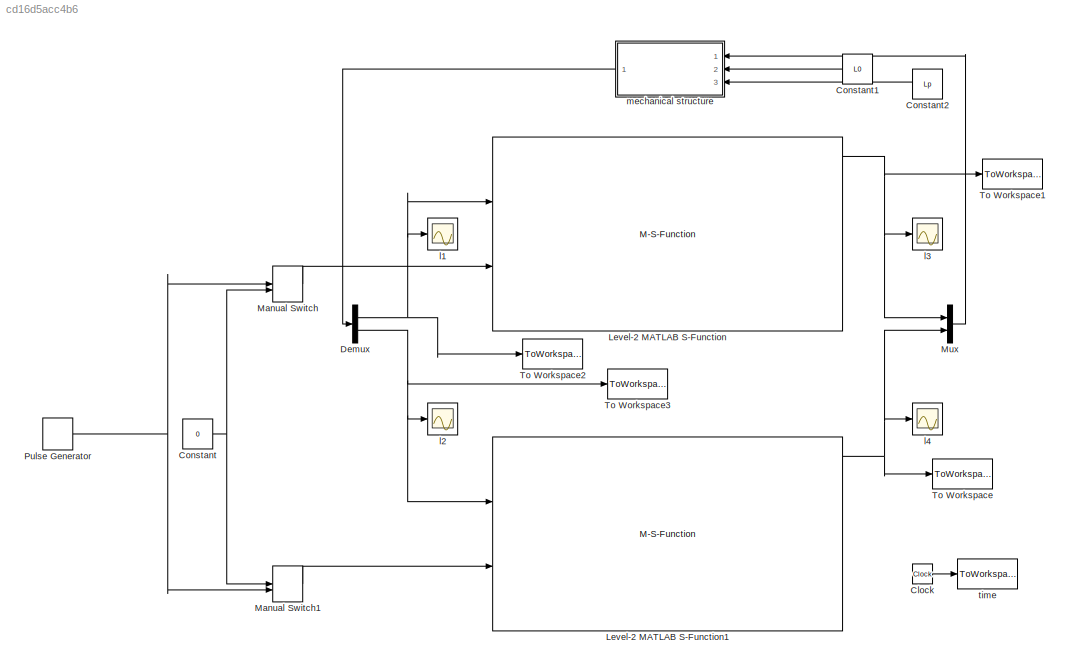
MODEL slx_cd16d5acc4b6
KIND model
CONFIG AbsTol = auto
CONFIG EnableMultiTasking = off
CONFIG FixedStep = auto
CONFIG MaxStep = 0.001
CONFIG MinStep = auto
CONFIG RelTol = 1e-3
CONFIG SampleTimeConstraint = Unconstrained
CONFIG Solver = ode15s
CONFIG SolverName = ode15s
CONFIG StartTime = 0.0
CONFIG StopTime = 50
BLOCK [Clock] Clock
BLOCK [Constant] Constant
  Value = 0
BLOCK [Constant] Constant1
  Value = L0
BLOCK [Constant] Constant2
  Value = Lp
BLOCK [Demux] Demux
  DisplayOption = bar
  Outputs = 2
  Ports = [1, 2]
BLOCK [M-S-Function] Level-2 MATLAB S-Function
  FunctionName = sDE_dispIn
  Parameters = params, initConds
  Ports = [2, 9]
BLOCK [M-S-Function] Level-2 MATLAB S-Function1
  FunctionName = sDE_dispIn
  Parameters = params, initConds
  Ports = [2, 9]
BLOCK [ManualSwitch] Manual Switch
BLOCK [ManualSwitch] Manual Switch1
  CurrentSetting = 0
BLOCK [Mux] Mux
  DisplayOption = bar
  Inputs = 2
  Ports = [2, 1]
BLOCK [DiscretePulseGenerator] Pulse Generator
  Amplitude = 3000
  Period = 10
  PhaseDelay = 2.5
  Ports = [0, 1]
  PulseType = Time based
  PulseWidth = 50
BLOCK [ToWorkspace] To Workspace
  FixptAsFi = on
  MaxDataPoints = inf
  Ports = [1]
  SampleTime = -1
  Save2DSignal = 3-D array (concatenate along third dimension)
  VariableName = F2
BLOCK [ToWorkspace] To Workspace1
  FixptAsFi = on
  MaxDataPoints = inf
  Ports = [1]
  SampleTime = -1
  Save2DSignal = 3-D array (concatenate along third dimension)
  VariableName = F1
BLOCK [ToWorkspace] To Workspace2
  FixptAsFi = on
  MaxDataPoints = inf
  Ports = [1]
  SampleTime = -1
  Save2DSignal = 3-D array (concatenate along third dimension)
  VariableName = l1
BLOCK [ToWorkspace] To Workspace3
  FixptAsFi = on
  MaxDataPoints = inf
  Ports = [1]
  SampleTime = -1
  Save2DSignal = 3-D array (concatenate along third dimension)
  VariableName = l2
BLOCK [Scope] l1
  Floating = off
  NumInputPorts = 1
  Ports = [1]
  ScopeSpecificationString = Simulink.scopes.TimeScopeBlockCfg('CurrentConfiguration', extmgr.ConfigurationSet(extmgr.Configuration('Core','General UI',true),extmgr.Configuration('Core','Source UI',true),extmgr.Configuration('Sources','WiredSimulink',true),extmgr.Configuration('Visuals','Time Domain',true,'SerializedDisplays',{struct('MinYLimReal','0.25909','MaxYLimReal','0.27164','YLabelReal','','MinYLimMag','0.25909','MaxYL...<+1379ch>
BLOCK [Scope] l2
  Floating = off
  NumInputPorts = 1
  Ports = [1]
  ScopeSpecificationString = Simulink.scopes.TimeScopeBlockCfg('CurrentConfiguration', extmgr.ConfigurationSet(extmgr.Configuration('Core','General UI',true),extmgr.Configuration('Core','Source UI',true),extmgr.Configuration('Sources','WiredSimulink',true,'DataLoggingVariableName','ScopeData1'),extmgr.Configuration('Visuals','Time Domain',true,'SerializedDisplays',{struct('MinYLimReal','0.25718','MaxYLimReal','0.2909','YLabel...<+1414ch>
BLOCK [Scope] l3
  Floating = off
  NumInputPorts = 1
  Ports = [1]
  ScopeSpecificationString = Simulink.scopes.TimeScopeBlockCfg('CurrentConfiguration', extmgr.ConfigurationSet(extmgr.Configuration('Core','General UI',true),extmgr.Configuration('Core','Source UI',true),extmgr.Configuration('Sources','WiredSimulink',true,'DataLoggingVariableName','ScopeData2'),extmgr.Configuration('Visuals','Time Domain',true),extmgr.Configuration('Tools','Plot Navigation',true),extmgr.Configuration('Tools',...<+40ch>
BLOCK [Scope] l4
  Floating = off
  NumInputPorts = 1
  Ports = [1]
  ScopeSpecificationString = Simulink.scopes.TimeScopeBlockCfg('CurrentConfiguration', extmgr.ConfigurationSet(extmgr.Configuration('Core','General UI',true),extmgr.Configuration('Core','Source UI',true),extmgr.Configuration('Sources','WiredSimulink',true,'DataLoggingVariableName','ScopeData3'),extmgr.Configuration('Visuals','Time Domain',true,'SerializedDisplays',{struct('MinYLimReal','-9.63725','MaxYLimReal','86.73522','YLa...<+1419ch>
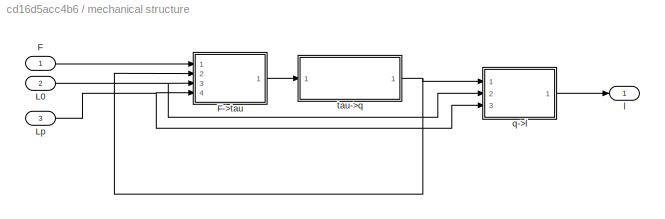
BLOCK [SubSystem] mechanical structure
  Ports = [3, 1]
  RequestExecContextInheritance = off
BLOCK [Inport] mechanical structure/F
  IconDisplay = Port number
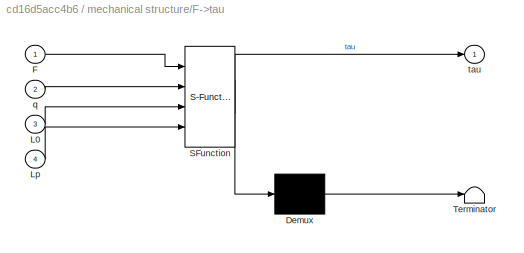
BLOCK [SubSystem] mechanical structure/F->tau
  ErrorFcn = Stateflow.Translate.translate
  PermitHierarchicalResolution = ExplicitOnly
  Ports = [4, 1]
  RequestExecContextInheritance = off
  SFBlockType = MATLAB Function
  TreatAsAtomicUnit = on
BLOCK [Demux] mechanical structure/F->tau/ Demux 
  Outputs = 1
  Ports = [1, 1]
BLOCK [S-Function] mechanical structure/F->tau/ SFunction 
  EnableBusSupport = on
  FunctionName = sf_sfun
  PortCounts = [4 2]
  Ports = [4, 2]
  SFcnIsStateOwnerBlock = off
  SFunctionDeploymentMode = off
  Tag = Stateflow S-Function Controller 2
BLOCK [Terminator] mechanical structure/F->tau/ Terminator 
BLOCK [Inport] mechanical structure/F->tau/F
  IconDisplay = Port number
BLOCK [Inport] mechanical structure/F->tau/L0
  IconDisplay = Port number
  Port = 3
BLOCK [Inport] mechanical structure/F->tau/Lp
  IconDisplay = Port number
  Port = 4
BLOCK [Inport] mechanical structure/F->tau/q
  IconDisplay = Port number
  Port = 2
BLOCK [Outport] mechanical structure/F->tau/tau
  IconDisplay = Port number
BLOCK [Inport] mechanical structure/L0
  IconDisplay = Port number
  Port = 2
BLOCK [Inport] mechanical structure/Lp
  IconDisplay = Port number
  Port = 3
BLOCK [Outport] mechanical structure/l
  IconDisplay = Port number
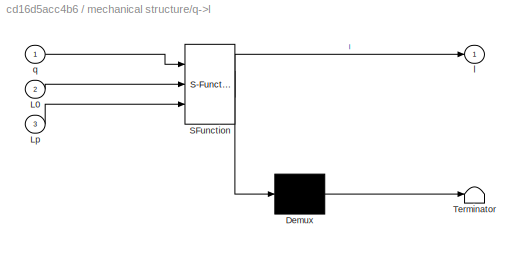
BLOCK [SubSystem] mechanical structure/q->l
  ErrorFcn = Stateflow.Translate.translate
  PermitHierarchicalResolution = ExplicitOnly
  Ports = [3, 1]
  RequestExecContextInheritance = off
  SFBlockType = MATLAB Function
  TreatAsAtomicUnit = on
BLOCK [Demux] mechanical structure/q->l/ Demux 
  Outputs = 1
  Ports = [1, 1]
BLOCK [S-Function] mechanical structure/q->l/ SFunction 
  EnableBusSupport = on
  FunctionName = sf_sfun
  PortCounts = [3 2]
  Ports = [3, 2]
  SFcnIsStateOwnerBlock = off
  SFunctionDeploymentMode = off
  Tag = Stateflow S-Function Controller 1
BLOCK [Terminator] mechanical structure/q->l/ Terminator 
BLOCK [Inport] mechanical structure/q->l/L0
  IconDisplay = Port number
  Port = 2
BLOCK [Inport] mechanical structure/q->l/Lp
  IconDisplay = Port number
  Port = 3
BLOCK [Outport] mechanical structure/q->l/l
  IconDisplay = Port number
BLOCK [Inport] mechanical structure/q->l/q
  IconDisplay = Port number
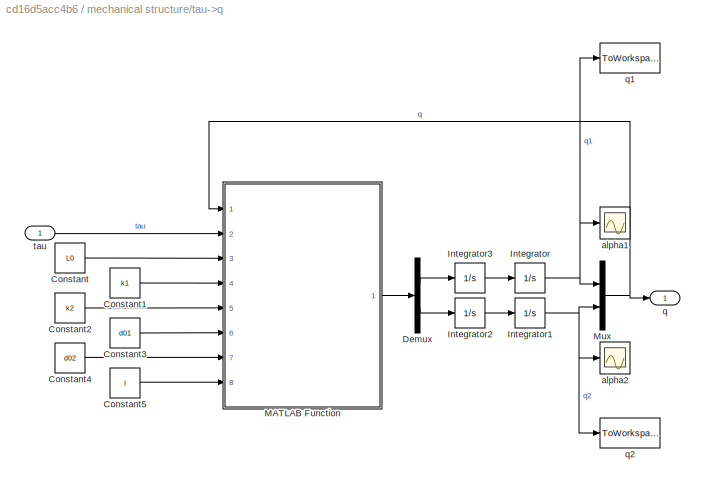
BLOCK [SubSystem] mechanical structure/tau->q
  Ports = [1, 1]
  RequestExecContextInheritance = off
BLOCK [Constant] mechanical structure/tau->q/Constant
  Value = L0
BLOCK [Constant] mechanical structure/tau->q/Constant1
  Value = k1
BLOCK [Constant] mechanical structure/tau->q/Constant2
  Value = k2
BLOCK [Constant] mechanical structure/tau->q/Constant3
  Value = d01
BLOCK [Constant] mechanical structure/tau->q/Constant4
  Value = d02
BLOCK [Constant] mechanical structure/tau->q/Constant5
  Value = I
BLOCK [Demux] mechanical structure/tau->q/Demux
  DisplayOption = bar
  Outputs = 2
  Ports = [1, 2]
BLOCK [Integrator] mechanical structure/tau->q/Integrator
  InitialCondition = q1_0
  Ports = [1, 1]
BLOCK [Integrator] mechanical structure/tau->q/Integrator1
  InitialCondition = q2_0
  Ports = [1, 1]
BLOCK [Integrator] mechanical structure/tau->q/Integrator2
  InitialCondition = q2_dot_0
  Ports = [1, 1]
BLOCK [Integrator] mechanical structure/tau->q/Integrator3
  InitialCondition = q1_dot_0
  Ports = [1, 1]
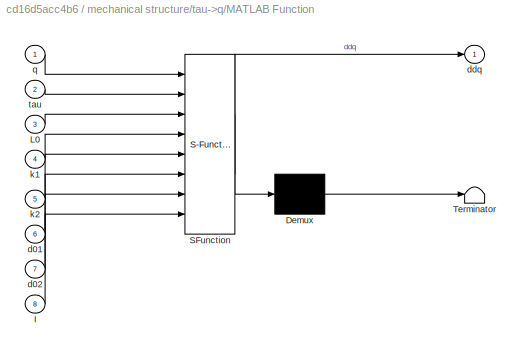
BLOCK [SubSystem] mechanical structure/tau->q/MATLAB Function
  ErrorFcn = Stateflow.Translate.translate
  PermitHierarchicalResolution = ExplicitOnly
  Ports = [8, 1]
  RequestExecContextInheritance = off
  SFBlockType = MATLAB Function
  TreatAsAtomicUnit = on
BLOCK [Demux] mechanical structure/tau->q/MATLAB Function/ Demux 
  Outputs = 1
  Ports = [1, 1]
BLOCK [S-Function] mechanical structure/tau->q/MATLAB Function/ SFunction 
  EnableBusSupport = on
  FunctionName = sf_sfun
  PortCounts = [8 2]
  Ports = [8, 2]
  SFcnIsStateOwnerBlock = off
  SFunctionDeploymentMode = off
  Tag = Stateflow S-Function Controller 3
BLOCK [Terminator] mechanical structure/tau->q/MATLAB Function/ Terminator 
BLOCK [Inport] mechanical structure/tau->q/MATLAB Function/I
  IconDisplay = Port number
  Port = 8
BLOCK [Inport] mechanical structure/tau->q/MATLAB Function/L0
  IconDisplay = Port number
  Port = 3
BLOCK [Inport] mechanical structure/tau->q/MATLAB Function/d01
  IconDisplay = Port number
  Port = 6
BLOCK [Inport] mechanical structure/tau->q/MATLAB Function/d02
  IconDisplay = Port number
  Port = 7
BLOCK [Outport] mechanical structure/tau->q/MATLAB Function/ddq
  IconDisplay = Port number
BLOCK [Inport] mechanical structure/tau->q/MATLAB Function/k1
  IconDisplay = Port number
  Port = 4
BLOCK [Inport] mechanical structure/tau->q/MATLAB Function/k2
  IconDisplay = Port number
  Port = 5
BLOCK [Inport] mechanical structure/tau->q/MATLAB Function/q
  IconDisplay = Port number
BLOCK [Inport] mechanical structure/tau->q/MATLAB Function/tau
  IconDisplay = Port number
  Port = 2
BLOCK [Mux] mechanical structure/tau->q/Mux
  DisplayOption = bar
  Inputs = 2
  Ports = [2, 1]
BLOCK [Scope] mechanical structure/tau->q/alpha1
  Floating = off
  NumInputPorts = 1
  Ports = [1]
  ScopeSpecificationString = Simulink.scopes.TimeScopeBlockCfg('CurrentConfiguration', extmgr.ConfigurationSet(extmgr.Configuration('Core','General UI',true),extmgr.Configuration('Core','Source UI',true),extmgr.Configuration('Sources','WiredSimulink',true,'DataLoggingVariableName','ScopeData4'),extmgr.Configuration('Visuals','Time Domain',true,'SerializedDisplays',{struct('MinYLimReal','0.64006','MaxYLimReal','2.09343','YLabe...<+1460ch>
BLOCK [Scope] mechanical structure/tau->q/alpha2
  Floating = off
  NumInputPorts = 1
  Ports = [1]
  ScopeSpecificationString = Simulink.scopes.TimeScopeBlockCfg('CurrentConfiguration', extmgr.ConfigurationSet(extmgr.Configuration('Core','General UI',true),extmgr.Configuration('Core','Source UI',true),extmgr.Configuration('Sources','WiredSimulink',true,'DataLoggingVariableName','ScopeData5'),extmgr.Configuration('Visuals','Time Domain',true,'SerializedDisplays',{struct('MinYLimReal','0.78153','MaxYLimReal','0.80327','YLabe...<+1429ch>
BLOCK [Outport] mechanical structure/tau->q/q
  IconDisplay = Port number
BLOCK [ToWorkspace] mechanical structure/tau->q/q1
  FixptAsFi = on
  MaxDataPoints = inf
  Ports = [1]
  SampleTime = -1
  Save2DSignal = 3-D array (concatenate along third dimension)
  VariableName = alpha1
BLOCK [ToWorkspace] mechanical structure/tau->q/q2
  FixptAsFi = on
  MaxDataPoints = inf
  Ports = [1]
  SampleTime = -1
  Save2DSignal = 3-D array (concatenate along third dimension)
  VariableName = alpha2
BLOCK [Inport] mechanical structure/tau->q/tau
  IconDisplay = Port number
BLOCK [ToWorkspace] time 
  FixptAsFi = on
  MaxDataPoints = inf
  Ports = [1]
  SampleTime = -1
  Save2DSignal = 3-D array (concatenate along third dimension)
  VariableName = time
LINE Clock:1 -> time :1
LINE Constant1:1 -> mechanical structure:2
LINE Constant2:1 -> mechanical structure:3
NET Constant:1 -> Manual Switch1:1, Manual Switch:2
NET Demux:1 -> Level-2 MATLAB S-Function:1, To Workspace2:1, l1:1
NET Demux:2 -> Level-2 MATLAB S-Function1:1, To Workspace3:1, l2:1
NET Level-2 MATLAB S-Function1:1 -> Mux:2, To Workspace:1, l4:1
NET Level-2 MATLAB S-Function:1 -> Mux:1, To Workspace1:1, l3:1
LINE Manual Switch1:1 -> Level-2 MATLAB S-Function1:2
LINE Manual Switch:1 -> Level-2 MATLAB S-Function:2
LINE Mux:1 -> mechanical structure:1
NET Pulse Generator:1 -> Manual Switch1:2, Manual Switch:1
LINE mechanical structure/F->tau:1 -> mechanical structure/tau->q:1
LINE mechanical structure/F:1 -> mechanical structure/F->tau:1
NET mechanical structure/L0:1 -> mechanical structure/F->tau:3, mechanical structure/q->l:2
NET mechanical structure/Lp:1 -> mechanical structure/F->tau:4, mechanical structure/q->l:3
LINE mechanical structure/q->l:1 -> mechanical structure/l:1
LINE mechanical structure/tau->q/Constant1:1 -> mechanical structure/tau->q/MATLAB Function:4
LINE mechanical structure/tau->q/Constant2:1 -> mechanical structure/tau->q/MATLAB Function:5
LINE mechanical structure/tau->q/Constant3:1 -> mechanical structure/tau->q/MATLAB Function:6
LINE mechanical structure/tau->q/Constant4:1 -> mechanical structure/tau->q/MATLAB Function:7
LINE mechanical structure/tau->q/Constant5:1 -> mechanical structure/tau->q/MATLAB Function:8
LINE mechanical structure/tau->q/Constant:1 -> mechanical structure/tau->q/MATLAB Function:3
LINE mechanical structure/tau->q/Demux:1 -> mechanical structure/tau->q/Integrator3:1
LINE mechanical structure/tau->q/Demux:2 -> mechanical structure/tau->q/Integrator2:1
NET mechanical structure/tau->q/Integrator1:1 -> mechanical structure/tau->q/Mux:2, mechanical structure/tau->q/alpha2:1, mechanical structure/tau->q/q2:1
LINE mechanical structure/tau->q/Integrator2:1 -> mechanical structure/tau->q/Integrator1:1
LINE mechanical structure/tau->q/Integrator3:1 -> mechanical structure/tau->q/Integrator:1
NET mechanical structure/tau->q/Integrator:1 -> mechanical structure/tau->q/Mux:1, mechanical structure/tau->q/alpha1:1, mechanical structure/tau->q/q1:1
LINE mechanical structure/tau->q/MATLAB Function:1 -> mechanical structure/tau->q/Demux:1
NET mechanical structure/tau->q/Mux:1 -> mechanical structure/tau->q/MATLAB Function:1, mechanical structure/tau->q/q:1
LINE mechanical structure/tau->q/tau:1 -> mechanical structure/tau->q/MATLAB Function:2
NET mechanical structure/tau->q:1 -> mechanical structure/F->tau:2, mechanical structure/q->l:1
LINE mechanical structure:1 -> Demux:1
note: NET lines group one-source signal fan-out (src -> all destinations, sorted); 1:1 wires keep LINE
CHART mechanical structure/q->l states=1 transitions=1
  STATE_LABEL 'eML_blk_kernel()'
  STATE_LABEL 'SCRIPT:\nfunction l = fcn(q,L0,Lp)\n\nq1 = q(1);\nq2 = q(2);\n\nl = [(((2^(1/2)*L0)/2 - L0*cos(q1))^2 + (Lp + (2^(1/2)*L0)/2 - L0*sin(q1))^2)^(1/2);\n (((2^(1/2)*L0)/2 - L0*cos(q2))^2 + (Lp + (2^(1/2)*L0)/2 - L0*sin(q2))^2)^(1/2)];\n'
CHART mechanical structure/F->tau states=1 transitions=1
  STATE_LABEL 'eML_blk_kernel()'
  STATE_LABEL 'SCRIPT:\nfunction tau = fcn(F,q,L0,Lp)\n\n\nq1 = q(1);\nq2 = q(2);\n\n\n\nJ = [\n    [ -(L0*(2*Lp*cos(q1) + 2^(1/2)*L0*cos(q1) - 2^(1/2)*L0*sin(q1)))/((2*Lp + 2^(1/2)*L0 - 2*L0*sin(q1))^2 + L0^2*(2*cos(q1) - 2^(1/2))^2)^(1/2),                                                                                                                                          0];\n    [                                     ...<+265ch>'
CHART mechanical structure/tau->q/MATLAB Function states=1 transitions=1
  STATE_LABEL 'eML_blk_kernel()'
  STATE_LABEL 'SCRIPT:\nfunction ddq = fcn(q,tau,L0,k1,k2,d01,d02,I)\n\nq1 = q(1);\nq2 = q(2);\n\ntau1 = tau(1);\ntau2 = tau(2);\n\nddq1 = (tau1+(2^(1/2)*L0^2*k1*sin(q1 + q2)*(2*d01 - 2^(1/2)*(-L0^2*(cos(q1 + q2) - 1))^(1/2)))/(8*(-L0^2*(cos(q1 + q2) - 1))^(1/2)) - (2^(1/2)*L0^2*k2*(d02 - 2^(1/2)*(L0^2*(2*sin(pi/9) + cos(q1 + q2 + (2*pi)/9) - 2*sin(q1 + q2 + pi/9) - cos(q1 + q2) + 2))^(1/2))*(2*cos(q1 + q2 + pi/9) + sin(...<+593ch>'
